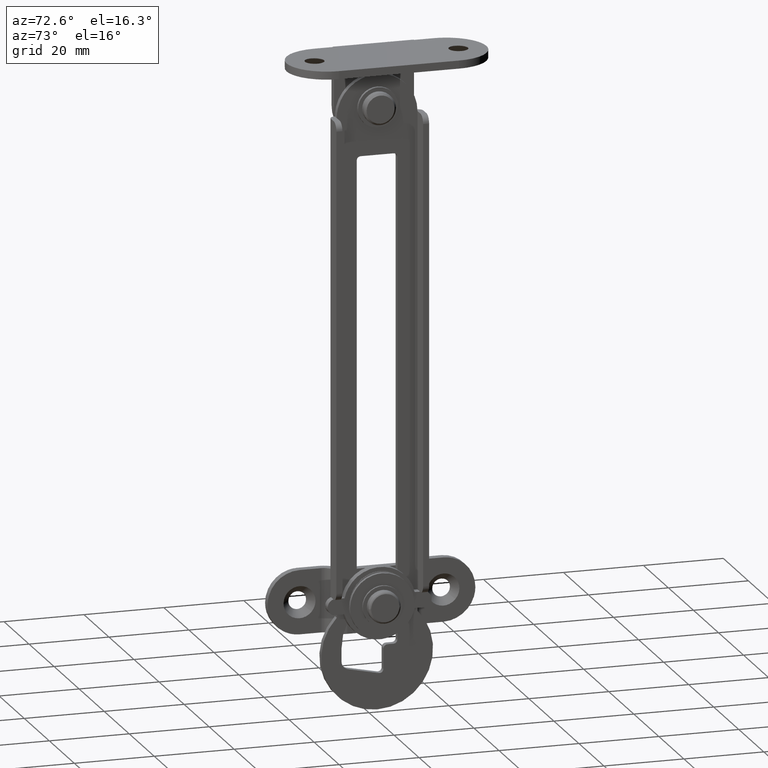
[diagram: clean part render]
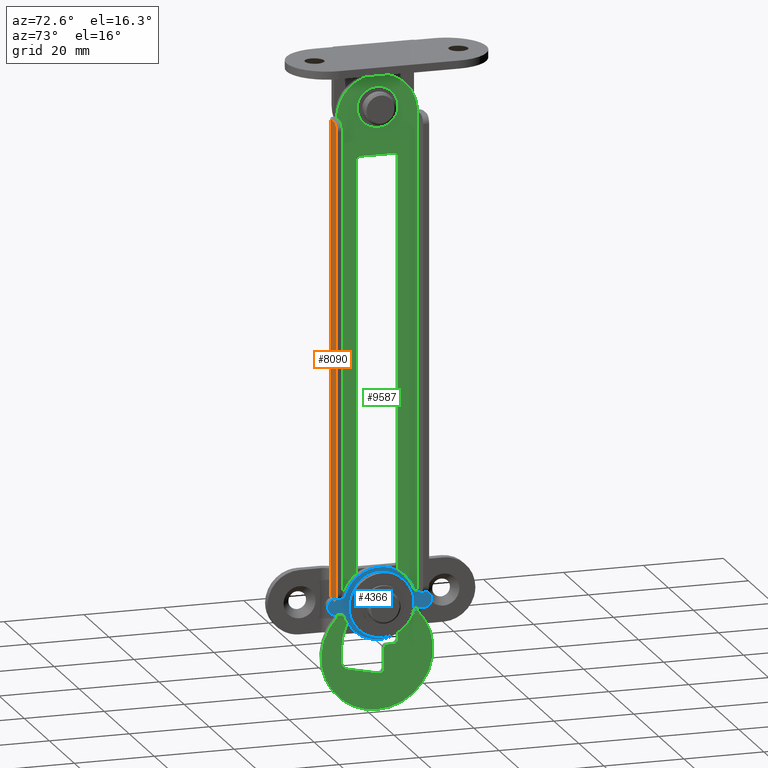
[diagram: same view with three faces highlighted in distinct colors, each labeled with its STEP entity id]
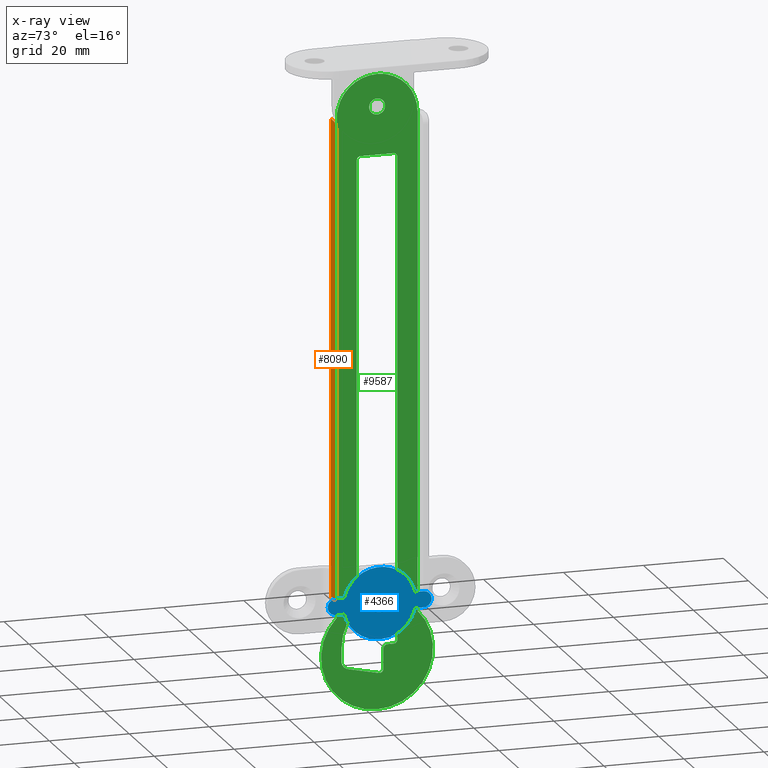
[diagram: x-ray of the same camera — body ghosted, the three highlighted faces saturated]
A machine part, auxiliary view with three faces highlighted in distinct colors.
The next image is the same camera in x-ray (body ghosted, the three faces saturated) — at least one of them is partly hidden behind the body in this view.
Their STEP definitions:

[orange] entity #8090 — the highlighted face is a freeform B-spline surface patch.
#8031=CARTESIAN_POINT('',(6.275225008721867,-11.600007000000000,3.944050518604876));
#8032=CARTESIAN_POINT('',(6.275225008721867,-11.600007000000000,-126.944068710434000));
#8033=CARTESIAN_POINT('',(11.224775111977660,-11.600007000000000,3.944050518604876));
#8034=CARTESIAN_POINT('',(11.224775111977660,-11.600007000000000,-126.944068710434000));
#8035=B_SPLINE_SURFACE_WITH_KNOTS('',1,1,((#8031,#8033),(#8032,#8034)),.UNSPECIFIED.,.F.,.F.,.U.,(2,2),(2,2),(0.0,130.888119229038890),(0.0,4.949550103255792),.UNSPECIFIED.);
#8036=CARTESIAN_POINT('',(9.000000000000119,-11.600007000000000,-2.0));
#8037=VERTEX_POINT('',#8036);
#8038=CARTESIAN_POINT('',(6.500000000000000,-11.600007000000000,-2.0));
#8039=VERTEX_POINT('',#8038);
#8040=CARTESIAN_POINT('',(9.000000000000119,-11.600007000000000,-2.0));
#8041=CARTESIAN_POINT('',(6.500000000000000,-11.600007000000000,-2.0));
#8042=QUASI_UNIFORM_CURVE('',1,(#8040,#8041),.UNSPECIFIED.,.F.,.U.);
#8043=EDGE_CURVE('',#8037,#8039,#8042,.T.);
#8044=ORIENTED_EDGE('',*,*,#8043,.T.);
#8045=CARTESIAN_POINT('',(6.500000000000000,-11.600007000000000,-121.000015000000000));
#8046=VERTEX_POINT('',#8045);
#8047=CARTESIAN_POINT('',(6.500000000000000,-11.600007000000000,-2.0));
#8048=CARTESIAN_POINT('',(6.500000000000000,-11.600007000000000,-121.000015000000000));
#8049=QUASI_UNIFORM_CURVE('',1,(#8047,#8048),.UNSPECIFIED.,.F.,.U.);
#8050=EDGE_CURVE('',#8039,#8046,#8049,.T.);
#8051=ORIENTED_EDGE('',*,*,#8050,.T.);
#8052=CARTESIAN_POINT('',(9.000000000000119,-11.600007000000000,-121.000015000000000));
#8053=VERTEX_POINT('',#8052);
#8054=CARTESIAN_POINT('',(9.000000000000119,-11.600007000000000,-121.000015000000000));
#8055=CARTESIAN_POINT('',(6.500000000000000,-11.600007000000000,-121.000015000000000));
#8056=QUASI_UNIFORM_CURVE('',1,(#8054,#8055),.UNSPECIFIED.,.F.,.U.);
#8057=EDGE_CURVE('',#8053,#8046,#8056,.T.);
#8058=ORIENTED_EDGE('',*,*,#8057,.F.);
#8059=CARTESIAN_POINT('',(11.000000000000121,-11.600007000000000,-119.000015000000000));
#8060=VERTEX_POINT('',#8059);
#8061=CARTESIAN_POINT('',(9.000000000000119,-11.600007000000000,-121.000015000000000));
#8062=CARTESIAN_POINT('',(9.311027817312393,-11.600007000000000,-121.000598600769000));
#8063=CARTESIAN_POINT('',(9.801264174646930,-11.600007000000019,-120.883095326084100));
#8064=CARTESIAN_POINT('',(10.414112038293050,-11.600006999999980,-120.462737651445100));
#8065=CARTESIAN_POINT('',(10.867627985511270,-11.600007000000041,-119.866853696787200));
#8066=CARTESIAN_POINT('',(11.000507950984151,-11.600006999999970,-119.310973426893600));
#8067=CARTESIAN_POINT('',(11.000000000000121,-11.600007000000000,-119.000015000000000));
#8068=B_SPLINE_CURVE_WITH_KNOTS('',3,(#8061,#8062,#8063,#8064,#8065,#8066,#8067),.UNSPECIFIED.,.F.,.U.,(4,1,1,1,4),(0.000000633074783,0.932686972905282,1.472688431320631,2.208981155448811,3.141671488830991),.UNSPECIFIED.);
#8069=EDGE_CURVE('',#8053,#8060,#8068,.T.);
#8070=ORIENTED_EDGE('',*,*,#8069,.T.);
#8071=CARTESIAN_POINT('',(11.000000000000121,-11.600007000000000,-4.0));
#8072=VERTEX_POINT('',#8071);
#8073=CARTESIAN_POINT('',(11.000000000000121,-11.600007000000000,-119.000015000000000));
#8074=CARTESIAN_POINT('',(11.000000000000121,-11.600007000000000,-4.0));
#8075=QUASI_UNIFORM_CURVE('',1,(#8073,#8074),.UNSPECIFIED.,.F.,.U.);
#8076=EDGE_CURVE('',#8060,#8072,#8075,.T.);
#8077=ORIENTED_EDGE('',*,*,#8076,.T.);
#8078=CARTESIAN_POINT('',(11.000000000000121,-11.600007000000000,-4.0));
#8079=CARTESIAN_POINT('',(11.000190141825920,-11.600006999999991,-3.754540732444406));
#8080=CARTESIAN_POINT('',(10.908545519536300,-11.600007000000019,-3.263787123399931));
#8081=CARTESIAN_POINT('',(10.533236264868091,-11.600006999999991,-2.654553542685784));
#8082=CARTESIAN_POINT('',(9.899163317370354,-11.600007000000010,-2.147035042383561));
#8083=CARTESIAN_POINT('',(9.343808918300075,-11.600007000000000,-1.999215573508149));
#8084=CARTESIAN_POINT('',(9.000000000000119,-11.600007000000000,-2.0));
#8085=B_SPLINE_CURVE_WITH_KNOTS('',3,(#8078,#8079,#8080,#8081,#8082,#8083,#8084),.UNSPECIFIED.,.F.,.U.,(4,1,1,1,4),(0.000000633080186,0.736327350111824,1.472688431323159,2.110794237617833,3.141671488830998),.UNSPECIFIED.);
#8086=EDGE_CURVE('',#8072,#8037,#8085,.T.);
#8087=ORIENTED_EDGE('',*,*,#8086,.T.);
#8088=EDGE_LOOP('',(#8044,#8051,#8058,#8070,#8077,#8087));
#8089=FACE_OUTER_BOUND('',#8088,.T.);
#8090=ADVANCED_FACE('',(#8089),#8035,.T.);

[blue] entity #4366 — the highlighted face is a freeform B-spline surface patch.
#4067=CARTESIAN_POINT('',(8.499999999812198,-1.514378560012118,-121.404192367175700));
#4068=VERTEX_POINT('',#4067);
#4069=CARTESIAN_POINT('',(8.500000000000119,-2.199999999988829,-123.000022011007800));
#4070=VERTEX_POINT('',#4069);
#4071=CARTESIAN_POINT('',(8.499999999812198,-1.514378560012118,-121.404192367175700));
#4072=CARTESIAN_POINT('',(8.499999999839311,-1.757656436671839,-121.634321488796400));
#4073=CARTESIAN_POINT('',(8.499999999899361,-2.093130137615382,-122.144545134834200));
#4074=CARTESIAN_POINT('',(8.499999999969466,-2.200182240285936,-122.739623188018100));
#4075=CARTESIAN_POINT('',(8.500000000000119,-2.199999999988829,-123.000022011007800));
#4076=B_SPLINE_CURVE_WITH_KNOTS('',3,(#4071,#4072,#4073,#4074,#4075),.UNSPECIFIED.,.F.,.U.,(4,1,4),(0.000000182652122,1.004340787439086,1.785526382123468),.UNSPECIFIED.);
#4077=EDGE_CURVE('',#4068,#4070,#4076,.T.);
#4079=CARTESIAN_POINT('',(8.500000000000119,0.0,-125.200014999999990));
#4080=VERTEX_POINT('',#4079);
#4081=CARTESIAN_POINT('',(8.500000000000119,-2.199999999988829,-123.000022011007800));
#4082=CARTESIAN_POINT('',(8.500000000000112,-2.200960227943943,-123.378213448047300));
#4083=CARTESIAN_POINT('',(8.500000000000117,-2.028657581073538,-124.025099977765390));
#4084=CARTESIAN_POINT('',(8.500000000000119,-1.427640103651790,-124.739581590401900));
#4085=CARTESIAN_POINT('',(8.500000000000139,-0.737906357016346,-125.118951858041900));
#4086=CARTESIAN_POINT('',(8.500000000000101,-0.233987456557844,-125.200120869132600));
#4087=CARTESIAN_POINT('',(8.500000000000119,0.0,-125.200014999999990));
#4088=B_SPLINE_CURVE_WITH_KNOTS('',3,(#4081,#4082,#4083,#4084,#4085,#4086,#4087),.UNSPECIFIED.,.F.,.U.,(4,1,1,1,4),(0.000000620806074,1.133977093097966,1.943845537818117,2.753885164054109,3.455834686033117),.UNSPECIFIED.);
#4089=EDGE_CURVE('',#4070,#4080,#4088,.T.);
#4091=CARTESIAN_POINT('',(8.499999999812196,1.514378560012113,-124.595837632824400));
#4092=VERTEX_POINT('',#4091);
#4093=CARTESIAN_POINT('',(8.500000000000119,0.0,-125.200014999999990));
#4094=CARTESIAN_POINT('',(8.499999999963402,0.295816795678137,-125.200367261132500));
#4095=CARTESIAN_POINT('',(8.499999999894362,0.852269905205248,-125.085898721849500));
#4096=CARTESIAN_POINT('',(8.499999999835687,1.325169577939551,-124.775647640252100));
#4097=CARTESIAN_POINT('',(8.499999999812196,1.514378560012113,-124.595837632824400));
#4098=B_SPLINE_CURVE_WITH_KNOTS('',3,(#4093,#4094,#4095,#4096,#4097),.UNSPECIFIED.,.F.,.U.,(4,1,4),(0.000000130831618,0.887316415477756,1.670318180353883),.UNSPECIFIED.);
#4099=EDGE_CURVE('',#4080,#4092,#4098,.T.);
#4166=CARTESIAN_POINT('',(8.500000000000119,0.0,-120.800015000000000));
#4167=VERTEX_POINT('',#4166);
#4168=CARTESIAN_POINT('',(8.500000000000119,0.0,-120.800015000000000));
#4169=CARTESIAN_POINT('',(8.499999999963423,-0.295817282822841,-120.799661390540290));
#4170=CARTESIAN_POINT('',(8.499999999894344,-0.852268486825053,-120.914132343461900));
#4171=CARTESIAN_POINT('',(8.499999999835689,-1.325170374347369,-121.224381878726310));
#4172=CARTESIAN_POINT('',(8.499999999812198,-1.514378560012118,-121.404192367175700));
#4173=B_SPLINE_CURVE_WITH_KNOTS('',3,(#4168,#4169,#4170,#4171,#4172),.UNSPECIFIED.,.F.,.U.,(4,1,4),(0.000000130832315,0.887316415478043,1.670318180353918),.UNSPECIFIED.);
#4174=EDGE_CURVE('',#4167,#4068,#4173,.T.);
#4208=CARTESIAN_POINT('',(8.500000000000117,2.199999999988829,-123.000007988992190));
#4209=VERTEX_POINT('',#4208);
#4210=CARTESIAN_POINT('',(8.499999999812196,1.514378560012113,-124.595837632824400));
#4211=CARTESIAN_POINT('',(8.499999999834786,1.716941514872334,-124.403936134180400));
#4212=CARTESIAN_POINT('',(8.499999999892852,2.069332072656536,-123.910986185655300));
#4213=CARTESIAN_POINT('',(8.499999999962878,2.200438854036396,-123.316235630413300));
#4214=CARTESIAN_POINT('',(8.500000000000117,2.199999999988829,-123.000007988992190));
#4215=B_SPLINE_CURVE_WITH_KNOTS('',3,(#4210,#4211,#4212,#4213,#4214),.UNSPECIFIED.,.F.,.U.,(4,1,4),(0.000000182651829,0.837014626836825,1.785526382123499),.UNSPECIFIED.);
#4216=EDGE_CURVE('',#4092,#4209,#4215,.T.);
#4218=CARTESIAN_POINT('',(8.500000000000117,2.199999999988829,-123.000007988992190));
#4219=CARTESIAN_POINT('',(8.500000000000114,2.200203209681027,-122.730004535337200));
#4220=CARTESIAN_POINT('',(8.500000000000126,2.099421444105420,-122.190153734272400));
#4221=CARTESIAN_POINT('',(8.500000000000112,1.686545623253395,-121.520012647296890));
#4222=CARTESIAN_POINT('',(8.500000000000133,0.989065439098311,-120.961817729382200));
#4223=CARTESIAN_POINT('',(8.500000000000107,0.378208281616629,-120.799066626691500));
#4224=CARTESIAN_POINT('',(8.500000000000119,0.0,-120.800015000000000));
#4225=B_SPLINE_CURVE_WITH_KNOTS('',3,(#4218,#4219,#4220,#4221,#4222,#4223,#4224),.UNSPECIFIED.,.F.,.U.,(4,1,1,1,4),(0.000000620825634,0.809962238716494,1.619971103098136,2.321867762348007,3.455834686033128),.UNSPECIFIED.);
#4226=EDGE_CURVE('',#4209,#4167,#4225,.T.);
#4231=CARTESIAN_POINT('',(8.500000000000000,-14.298699949606799,-113.100817224436600));
#4232=CARTESIAN_POINT('',(8.500000000000000,14.298700646981461,-113.100817224436600));
#4233=CARTESIAN_POINT('',(8.500000000000000,-14.298699949606799,-132.899126688867600));
#4234=CARTESIAN_POINT('',(8.500000000000000,14.298700646981461,-132.899126688867600));
#4235=B_SPLINE_SURFACE_WITH_KNOTS('',1,1,((#4231,#4233),(#4232,#4234)),.UNSPECIFIED.,.F.,.F.,.U.,(2,2),(2,2),(0.0,28.597400596588251),(0.0,19.798309464431011),.UNSPECIFIED.);
#4236=CARTESIAN_POINT('',(8.500000000000119,-10.999999999999840,-121.000015000000000));
#4237=VERTEX_POINT('',#4236);
#4238=CARTESIAN_POINT('',(8.500000000000119,-8.774964366689170,-121.000014909166000));
#4239=VERTEX_POINT('',#4238);
#4240=CARTESIAN_POINT('',(8.500000000000119,-10.999999999999840,-121.000015000000000));
#4241=CARTESIAN_POINT('',(8.500000000000119,-8.774964366689170,-121.000014909166000));
#4242=QUASI_UNIFORM_CURVE('',1,(#4240,#4241),.UNSPECIFIED.,.F.,.U.);
#4243=EDGE_CURVE('',#4237,#4239,#4242,.T.);
#4244=ORIENTED_EDGE('',*,*,#4243,.F.);
#4245=CARTESIAN_POINT('',(8.500000000000119,-12.999999999999840,-123.000014944964090));
#4246=VERTEX_POINT('',#4245);
#4247=CARTESIAN_POINT('',(8.500000000000119,-10.999999999999840,-121.000015000000000));
#4248=CARTESIAN_POINT('',(8.500000000000119,-11.310992782194869,-120.999509841944300));
#4249=CARTESIAN_POINT('',(8.500000000000121,-11.801351361841331,-121.116811470217100));
#4250=CARTESIAN_POINT('',(8.500000000000132,-12.345901169647600,-121.490696098066810));
#4251=CARTESIAN_POINT('',(8.500000000000082,-12.668944624461330,-121.865175306871190));
#4252=CARTESIAN_POINT('',(8.500000000000132,-12.926743692662489,-122.362007983127200));
#4253=CARTESIAN_POINT('',(8.500000000000101,-13.000225389625511,-122.754539527016800));
#4254=CARTESIAN_POINT('',(8.500000000000119,-12.999999999999840,-123.000014944964090));
#4255=B_SPLINE_CURVE_WITH_KNOTS('',3,(#4247,#4248,#4249,#4250,#4251,#4252,#4253,#4254),.UNSPECIFIED.,.F.,.U.,(4,1,1,1,1,4),(0.000000633117907,0.932686963738326,1.472688416739850,1.963502022073281,2.405343520438178,3.141671457811053),.UNSPECIFIED.);
#4256=EDGE_CURVE('',#4237,#4246,#4255,.T.);
#4257=ORIENTED_EDGE('',*,*,#4256,.T.);
#4258=CARTESIAN_POINT('',(8.500000000000119,-10.999999999999840,-125.000015000000000));
#4259=VERTEX_POINT('',#4258);
#4260=CARTESIAN_POINT('',(8.500000000000119,-12.999999999999840,-123.000014944964090));
#4261=CARTESIAN_POINT('',(8.500000000000124,-13.000054220785289,-123.196355795288500));
#4262=CARTESIAN_POINT('',(8.500000000000112,-12.936937175630471,-123.621801367740700));
#4263=CARTESIAN_POINT('',(8.500000000000126,-12.668216874281150,-124.155738078864500));
#4264=CARTESIAN_POINT('',(8.500000000000103,-12.292928717995180,-124.549652764979500));
#4265=CARTESIAN_POINT('',(8.500000000000133,-11.768635321037729,-124.890983633298700));
#4266=CARTESIAN_POINT('',(8.500000000000124,-11.311012550709350,-125.000573668786300));
#4267=CARTESIAN_POINT('',(8.500000000000119,-10.999999999999840,-125.000015000000000));
#4268=B_SPLINE_CURVE_WITH_KNOTS('',3,(#4260,#4261,#4262,#4263,#4264,#4265,#4266,#4267),.UNSPECIFIED.,.F.,.U.,(4,1,1,1,1,4),(0.000000633041165,0.589043785687871,1.276353273555264,1.767149368499000,2.208981177235086,3.141671519851117),.UNSPECIFIED.);
#4269=EDGE_CURVE('',#4246,#4259,#4268,.T.);
#4270=ORIENTED_EDGE('',*,*,#4269,.T.);
#4271=CARTESIAN_POINT('',(8.500000000000119,-8.774964366689170,-125.000015090834000));
#4272=VERTEX_POINT('',#4271);
#4273=CARTESIAN_POINT('',(8.500000000000119,-8.774964366689170,-125.000015090834000));
#4274=CARTESIAN_POINT('',(8.500000000000119,-10.999999999999840,-125.000015000000000));
#4275=QUASI_UNIFORM_CURVE('',1,(#4273,#4274),.UNSPECIFIED.,.F.,.U.);
#4276=EDGE_CURVE('',#4272,#4259,#4275,.T.);
#4277=ORIENTED_EDGE('',*,*,#4276,.F.);
#4278=CARTESIAN_POINT('',(8.500000000000119,8.774963000000181,-125.000015000000000));
#4279=VERTEX_POINT('',#4278);
#4280=CARTESIAN_POINT('',(8.500000000000119,-8.774964366689170,-125.000015090834000));
#4281=CARTESIAN_POINT('',(8.500000000000117,-8.537346319036407,-126.046689489979500));
#4282=CARTESIAN_POINT('',(8.500000000000123,-7.882098243058506,-127.580025381124700));
#4283=CARTESIAN_POINT('',(8.500000000000116,-6.532086188578143,-129.261059232714100));
#4284=CARTESIAN_POINT('',(8.500000000000146,-5.336634290082848,-130.299891940161190));
#4285=CARTESIAN_POINT('',(8.500000000000066,-3.713623617477640,-131.288978418675810));
#4286=CARTESIAN_POINT('',(8.500000000000245,-1.772511197296713,-131.922762751285010));
#4287=CARTESIAN_POINT('',(8.499999999999975,0.254767810063350,-132.050573441849110));
#4288=CARTESIAN_POINT('',(8.500000000000208,1.888711056897012,-131.843186127274810));
#4289=CARTESIAN_POINT('',(8.500000000000192,3.343645842211416,-131.401735257695210));
#4290=CARTESIAN_POINT('',(8.499999999999874,4.704045470878533,-130.722767908730190));
#4291=CARTESIAN_POINT('',(8.500000000000227,5.931455406029520,-129.825409641192610));
#4292=CARTESIAN_POINT('',(8.500000000000147,7.168011750077689,-128.553566014637310));
#4293=CARTESIAN_POINT('',(8.499999999999973,8.183098623615846,-126.936952223717600));
#4294=CARTESIAN_POINT('',(8.500000000000192,8.634767216060599,-125.615510295319300));
#4295=CARTESIAN_POINT('',(8.500000000000119,8.774963000000181,-125.000015000000000));
#4296=B_SPLINE_CURVE_WITH_KNOTS('',3,(#4280,#4281,#4282,#4283,#4284,#4285,#4286,#4287,#4288,#4289,#4290,#4291,#4292,#4293,#4294,#4295),.UNSPECIFIED.,.F.,.U.,(4,1,1,1,1,1,1,1,1,1,1,1,1,4),(0.000000251978630,3.219510625033323,4.923949193202859,6.439055698795304,7.954167351182054,10.605559866810200,12.499292238850630,14.014366131959701,15.529371218439380,17.044523303566709,18.559607664804179,20.074717413330561,22.347290008819112,24.241104056901900),.UNSPECIFIED.);
#4297=EDGE_CURVE('',#4272,#4279,#4296,.T.);
#4298=ORIENTED_EDGE('',*,*,#4297,.T.);
#4299=CARTESIAN_POINT('',(8.500000000000119,10.999999895280400,-125.000015000000000));
#4300=VERTEX_POINT('',#4299);
#4301=CARTESIAN_POINT('',(8.500000000000119,10.999999895280400,-125.000015000000000));
#4302=CARTESIAN_POINT('',(8.500000000000119,8.774963000000181,-125.000015000000000));
#4303=QUASI_UNIFORM_CURVE('',1,(#4301,#4302),.UNSPECIFIED.,.F.,.U.);
#4304=EDGE_CURVE('',#4300,#4279,#4303,.T.);
#4305=ORIENTED_EDGE('',*,*,#4304,.F.);
#4306=CARTESIAN_POINT('',(8.500000000000117,13.000000000000160,-123.000015036139100));
#4307=VERTEX_POINT('',#4306);
#4308=CARTESIAN_POINT('',(8.500000000000119,10.999999895280400,-125.000015000000000));
#4309=CARTESIAN_POINT('',(8.500000000000117,11.311009251561090,-125.000515890782000));
#4310=CARTESIAN_POINT('',(8.500000000000121,11.801278266895331,-124.883161797792300));
#4311=CARTESIAN_POINT('',(8.500000000000117,12.414123635131270,-124.462739768091690));
#4312=CARTESIAN_POINT('',(8.500000000000181,12.867571038995470,-123.866805837163990));
#4313=CARTESIAN_POINT('',(8.500000000000064,13.000558548704790,-123.310995518699900));
#4314=CARTESIAN_POINT('',(8.500000000000117,13.000000000000160,-123.000015036139100));
#4315=B_SPLINE_CURVE_WITH_KNOTS('',3,(#4308,#4309,#4310,#4311,#4312,#4313,#4314),.UNSPECIFIED.,.F.,.U.,(4,1,1,1,4),(0.000000633035144,0.932686984338437,1.472688449497726,2.208981182600640,3.141671527485165),.UNSPECIFIED.);
#4316=EDGE_CURVE('',#4300,#4307,#4315,.T.);
#4317=ORIENTED_EDGE('',*,*,#4316,.T.);
#4318=CARTESIAN_POINT('',(8.500000000000119,11.000000000000160,-121.000015000000000));
#4319=VERTEX_POINT('',#4318);
#4320=CARTESIAN_POINT('',(8.500000000000117,13.000000000000160,-123.000015036139100));
#4321=CARTESIAN_POINT('',(8.500000000000108,13.000020048122440,-122.836405707401000));
#4322=CARTESIAN_POINT('',(8.500000000000133,12.951641856350530,-122.443646665940090));
#4323=CARTESIAN_POINT('',(8.500000000000139,12.729643165122919,-121.942782214518000));
#4324=CARTESIAN_POINT('',(8.500000000000073,12.337400724430600,-121.476644317268690));
#4325=CARTESIAN_POINT('',(8.500000000000211,11.785261858504350,-121.107533812412200));
#4326=CARTESIAN_POINT('',(8.500000000000066,11.278185285051149,-120.999710353021100));
#4327=CARTESIAN_POINT('',(8.500000000000119,11.000000000000160,-121.000015000000000));
#4328=B_SPLINE_CURVE_WITH_KNOTS('',3,(#4320,#4321,#4322,#4323,#4324,#4325,#4326,#4327),.UNSPECIFIED.,.F.,.U.,(4,1,1,1,1,4),(0.000000633034984,0.490859887128256,1.178173088064060,1.619829704019965,2.307164067911427,3.141671509200460),.UNSPECIFIED.);
#4329=EDGE_CURVE('',#4307,#4319,#4328,.T.);
#4330=ORIENTED_EDGE('',*,*,#4329,.T.);
#4331=CARTESIAN_POINT('',(8.500000000000119,8.774964331782579,-121.000014756014000));
#4332=VERTEX_POINT('',#4331);
#4333=CARTESIAN_POINT('',(8.500000000000119,8.774964331782579,-121.000014756014000));
#4334=CARTESIAN_POINT('',(8.500000000000119,11.000000000000160,-121.000015000000000));
#4335=QUASI_UNIFORM_CURVE('',1,(#4333,#4334),.UNSPECIFIED.,.F.,.U.);
#4336=EDGE_CURVE('',#4332,#4319,#4335,.T.);
#4337=ORIENTED_EDGE('',*,*,#4336,.F.);
#4338=CARTESIAN_POINT('',(8.500000000000119,8.774964331782579,-121.000014756014000));
#4339=CARTESIAN_POINT('',(8.500000000000124,8.606832000739940,-120.261403583813400));
#4340=CARTESIAN_POINT('',(8.500000000000110,8.104234579064968,-118.886922585993600));
#4341=CARTESIAN_POINT('',(8.500000000000121,6.968918163723417,-117.199720460640510));
#4342=CARTESIAN_POINT('',(8.500000000000132,5.691736094921681,-115.966270758285400));
#4343=CARTESIAN_POINT('',(8.500000000000082,4.374971560416063,-115.086224449457900));
#4344=CARTESIAN_POINT('',(8.500000000000190,2.755932191133123,-114.361357628880400));
#4345=CARTESIAN_POINT('',(8.500000000000179,1.013641881225626,-113.989340115220100));
#4346=CARTESIAN_POINT('',(8.500000000000028,-1.013629568148871,-113.989244239042610));
#4347=CARTESIAN_POINT('',(8.500000000000153,-2.880403118443846,-114.387981454073300));
#4348=CARTESIAN_POINT('',(8.500000000000119,-4.831382039090410,-115.310953085113990));
#4349=CARTESIAN_POINT('',(8.500000000000117,-6.323631936799459,-116.501405564021200));
#4350=CARTESIAN_POINT('',(8.500000000000108,-7.850672611593877,-118.362629845927900));
#4351=CARTESIAN_POINT('',(8.500000000000126,-8.523485302826080,-119.891716808375610));
#4352=CARTESIAN_POINT('',(8.500000000000119,-8.774964366689170,-121.000014909166000));
#4353=B_SPLINE_CURVE_WITH_KNOTS('',3,(#4338,#4339,#4340,#4341,#4342,#4343,#4344,#4345,#4346,#4347,#4348,#4349,#4350,#4351,#4352),.UNSPECIFIED.,.F.,.U.,(4,1,1,1,1,1,1,1,1,1,1,1,4),(0.000000251975941,2.272504188450593,4.355770762940022,6.060280407238476,7.575397092461511,9.090422372023651,11.363088773313050,12.878051986796750,15.150605162035310,17.044523980616049,19.317133604657009,20.832285749995279,24.241105019821529),.UNSPECIFIED.);
#4354=EDGE_CURVE('',#4332,#4239,#4353,.T.);
#4355=ORIENTED_EDGE('',*,*,#4354,.T.);
#4356=EDGE_LOOP('',(#4244,#4257,#4270,#4277,#4298,#4305,#4317,#4330,#4337,#4355));
#4357=FACE_OUTER_BOUND('',#4356,.T.);
#4358=ORIENTED_EDGE('',*,*,#4089,.F.);
#4359=ORIENTED_EDGE('',*,*,#4077,.F.);
#4360=ORIENTED_EDGE('',*,*,#4174,.F.);
#4361=ORIENTED_EDGE('',*,*,#4226,.F.);
#4362=ORIENTED_EDGE('',*,*,#4216,.F.);
#4363=ORIENTED_EDGE('',*,*,#4099,.F.);
#4364=EDGE_LOOP('',(#4358,#4359,#4360,#4361,#4362,#4363));
#4365=FACE_BOUND('',#4364,.T.);
#4366=ADVANCED_FACE('',(#4357,#4365),#4235,.F.);

[green] entity #9587 — the highlighted face is a freeform B-spline surface patch.
#7898=CARTESIAN_POINT('',(6.500000000000000,-1.401818130425980,1.426501270304761));
#7899=VERTEX_POINT('',#7898);
#7905=CARTESIAN_POINT('',(6.500000000000000,-1.999999999999999,-0.000000055035999));
#7906=VERTEX_POINT('',#7905);
#7907=CARTESIAN_POINT('',(6.500000000000000,-1.999999999999999,-0.000000055035999));
#7908=CARTESIAN_POINT('',(6.499999999999998,-2.000801605296121,0.331074792098914));
#7909=CARTESIAN_POINT('',(6.499999999999989,-1.865379621508600,0.859626920912765));
#7910=CARTESIAN_POINT('',(6.500000000000007,-1.543471408052776,1.287396064692109));
#7911=CARTESIAN_POINT('',(6.500000000000000,-1.401818130425980,1.426501270304761));
#7912=B_SPLINE_CURVE_WITH_KNOTS('',3,(#7907,#7908,#7909,#7910,#7911),.UNSPECIFIED.,.F.,.U.,(4,1,4),(0.000000148909229,0.992664741090703,1.588290959198804),.UNSPECIFIED.);
#7913=EDGE_CURVE('',#7906,#7899,#7912,.T.);
#7915=CARTESIAN_POINT('',(6.500000000000000,0.0,-2.0));
#7916=VERTEX_POINT('',#7915);
#7917=CARTESIAN_POINT('',(6.500000000000000,0.0,-2.0));
#7918=CARTESIAN_POINT('',(6.500000000000002,-0.196326236803006,-2.000025129273309));
#7919=CARTESIAN_POINT('',(6.500000000000007,-0.654572953151147,-1.932213638662527));
#7920=CARTESIAN_POINT('',(6.499999999999980,-1.242929850331033,-1.617733343522101));
#7921=CARTESIAN_POINT('',(6.500000000000023,-1.653785319402174,-1.164054646524848));
#7922=CARTESIAN_POINT('',(6.499999999999993,-1.926761413123408,-0.638004529938924));
#7923=CARTESIAN_POINT('',(6.500000000000006,-2.000198975283831,-0.245471631698664));
#7924=CARTESIAN_POINT('',(6.500000000000000,-1.999999999999999,-0.000000055035999));
#7925=B_SPLINE_CURVE_WITH_KNOTS('',3,(#7917,#7918,#7919,#7920,#7921,#7922,#7923,#7924),.UNSPECIFIED.,.F.,.U.,(4,1,1,1,1,4),(0.000000633118132,0.589043774118171,1.374526089243631,1.963502022072255,2.405343520437926,3.141671457811024),.UNSPECIFIED.);
#7926=EDGE_CURVE('',#7916,#7906,#7925,.T.);
#7928=CARTESIAN_POINT('',(6.500000000000000,1.401818130425981,-1.426501270304762));
#7929=VERTEX_POINT('',#7928);
#7930=CARTESIAN_POINT('',(6.500000000000000,1.401818130425981,-1.426501270304762));
#7931=CARTESIAN_POINT('',(6.499999999999995,1.286420066040690,-1.539879864862290));
#7932=CARTESIAN_POINT('',(6.500000000000021,0.872917608500746,-1.858060431330297));
#7933=CARTESIAN_POINT('',(6.499999999999992,0.356252315885464,-2.000993771219614));
#7934=CARTESIAN_POINT('',(6.500000000000000,0.0,-2.0));
#7935=B_SPLINE_CURVE_WITH_KNOTS('',3,(#7930,#7931,#7932,#7933,#7934),.UNSPECIFIED.,.F.,.U.,(4,1,4),(0.000057332588186,0.485474589826488,1.553409172210848),.UNSPECIFIED.);
#7936=EDGE_CURVE('',#7929,#7916,#7935,.T.);
#7975=CARTESIAN_POINT('',(6.500000000000000,1.999999999999999,0.000000055035993));
#7976=VERTEX_POINT('',#7975);
#7977=CARTESIAN_POINT('',(6.500000000000000,1.999999999999999,0.000000055035993));
#7978=CARTESIAN_POINT('',(6.499999999999994,2.000033243038247,-0.198510924622109));
#7979=CARTESIAN_POINT('',(6.500000000000023,1.920725826528605,-0.728047369380959));
#7980=CARTESIAN_POINT('',(6.499999999999989,1.638410878529170,-1.194951607714130));
#7981=CARTESIAN_POINT('',(6.500000000000000,1.401818130425981,-1.426501270304762));
#7982=B_SPLINE_CURVE_WITH_KNOTS('',3,(#7977,#7978,#7979,#7980,#7981),.UNSPECIFIED.,.F.,.U.,(4,1,4),(0.000000148909258,0.595626367022481,1.588290959198798),.UNSPECIFIED.);
#7983=EDGE_CURVE('',#7976,#7929,#7982,.T.);
#7985=CARTESIAN_POINT('',(6.500000000000000,0.0,2.0));
#7986=VERTEX_POINT('',#7985);
#7987=CARTESIAN_POINT('',(6.500000000000000,0.0,2.0));
#7988=CARTESIAN_POINT('',(6.500000000000009,0.196348095666510,2.000070016343258));
#7989=CARTESIAN_POINT('',(6.499999999999984,0.589002105534888,1.941702682557977));
#7990=CARTESIAN_POINT('',(6.500000000000006,1.187280142726105,1.659028552174805));
#7991=CARTESIAN_POINT('',(6.500000000000001,1.623590074524727,1.222641936926909));
#7992=CARTESIAN_POINT('',(6.499999999999993,1.926727771590865,0.637989628471462));
#7993=CARTESIAN_POINT('',(6.500000000000004,2.000223993982883,0.245475106367751));
#7994=CARTESIAN_POINT('',(6.500000000000000,1.999999999999999,0.000000055035993));
#7995=B_SPLINE_CURVE_WITH_KNOTS('',3,(#7987,#7988,#7989,#7990,#7991,#7992,#7993,#7994),.UNSPECIFIED.,.F.,.U.,(4,1,1,1,1,4),(0.000000633118024,0.589043774118085,1.178173068856876,1.963502022072236,2.405343520437921,3.141671457811028),.UNSPECIFIED.);
#7996=EDGE_CURVE('',#7986,#7976,#7995,.T.);
#7998=CARTESIAN_POINT('',(6.500000000000000,-1.401818130425980,1.426501270304761));
#7999=CARTESIAN_POINT('',(6.499999999999999,-1.286420276562166,1.539880824592787));
#8000=CARTESIAN_POINT('',(6.499999999999999,-0.872917935235357,1.858059068356832));
#8001=CARTESIAN_POINT('',(6.500000000000010,-0.356252374318572,2.000994025447797));
#8002=CARTESIAN_POINT('',(6.500000000000000,0.0,2.0));
#8003=B_SPLINE_CURVE_WITH_KNOTS('',3,(#7998,#7999,#8000,#8001,#8002),.UNSPECIFIED.,.F.,.U.,(4,1,4),(0.000057332588200,0.485474589826494,1.553409172210848),.UNSPECIFIED.);
#8004=EDGE_CURVE('',#7899,#7986,#8003,.T.);
#8702=CARTESIAN_POINT('',(6.500000000000090,2.600007000000000,-134.000014999999990));
#8703=VERTEX_POINT('',#8702);
#8709=CARTESIAN_POINT('',(6.500000000000000,4.100007000000000,-134.000014999999990));
#8710=VERTEX_POINT('',#8709);
#8711=CARTESIAN_POINT('',(6.500000000000090,2.600007000000000,-134.000014999999990));
#8712=CARTESIAN_POINT('',(6.500000000000000,4.100007000000000,-134.000014999999990));
#8713=QUASI_UNIFORM_CURVE('',1,(#8711,#8712),.UNSPECIFIED.,.F.,.U.);
#8714=EDGE_CURVE('',#8703,#8710,#8713,.T.);
#8740=CARTESIAN_POINT('',(6.500000000000000,5.100007000000000,-133.000014999999990));
#8741=VERTEX_POINT('',#8740);
#8742=CARTESIAN_POINT('',(6.500000000000000,4.100007000000000,-134.000014999999990));
#8743=CARTESIAN_POINT('',(6.499999999999998,4.247320202903092,-134.000245501756410));
#8744=CARTESIAN_POINT('',(6.500000000000010,4.492560723196022,-133.944767512132810));
#8745=CARTESIAN_POINT('',(6.499999999999986,4.767552884261368,-133.760900748627900));
#8746=CARTESIAN_POINT('',(6.500000000000037,5.015519399403755,-133.473883064525500));
#8747=CARTESIAN_POINT('',(6.499999999999980,5.100649521044428,-133.196550126445600));
#8748=CARTESIAN_POINT('',(6.500000000000000,5.100007000000000,-133.000014999999990));
#8749=B_SPLINE_CURVE_WITH_KNOTS('',3,(#8742,#8743,#8744,#8745,#8746,#8747,#8748),.UNSPECIFIED.,.F.,.U.,(4,1,1,1,4),(0.000001035568474,0.441839857583914,0.736452044490407,0.981840522443587,1.570953883565284),.UNSPECIFIED.);
#8750=EDGE_CURVE('',#8710,#8741,#8749,.T.);
#8767=CARTESIAN_POINT('',(6.500000000000000,5.100006999999841,-13.0));
#8768=VERTEX_POINT('',#8767);
#8769=CARTESIAN_POINT('',(6.500000000000000,5.100007000000000,-133.000014999999990));
#8770=CARTESIAN_POINT('',(6.500000000000000,5.100006999999841,-13.0));
#8771=QUASI_UNIFORM_CURVE('',1,(#8769,#8770),.UNSPECIFIED.,.F.,.U.);
#8772=EDGE_CURVE('',#8741,#8768,#8771,.T.);
#8798=CARTESIAN_POINT('',(6.500000000000000,4.100007645771830,-12.000000000000201));
#8799=VERTEX_POINT('',#8798);
#8800=CARTESIAN_POINT('',(6.500000000000000,5.100006999999841,-13.0));
#8801=CARTESIAN_POINT('',(6.500000000000003,5.100074966635046,-12.885465343750070));
#8802=CARTESIAN_POINT('',(6.500000000000000,5.057407797354367,-12.640023858640911));
#8803=CARTESIAN_POINT('',(6.499999999999996,4.860327232292996,-12.310897748808671));
#8804=CARTESIAN_POINT('',(6.500000000000001,4.525213738374414,-12.062573099836820));
#8805=CARTESIAN_POINT('',(6.500000000000003,4.247324118103194,-11.999781237807170));
#8806=CARTESIAN_POINT('',(6.500000000000000,4.100007645771830,-12.000000000000201));
#8807=B_SPLINE_CURVE_WITH_KNOTS('',3,(#8800,#8801,#8802,#8803,#8804,#8805,#8806),.UNSPECIFIED.,.F.,.U.,(4,1,1,1,4),(0.000001037269509,0.343638559344235,0.736451876025924,1.129114799128311,1.570953519561834),.UNSPECIFIED.);
#8808=EDGE_CURVE('',#8768,#8799,#8807,.T.);
#8825=CARTESIAN_POINT('',(6.500000000000000,-4.100005999999950,-12.0));
#8826=VERTEX_POINT('',#8825);
#8827=CARTESIAN_POINT('',(6.500000000000000,4.100007645771830,-12.000000000000201));
#8828=CARTESIAN_POINT('',(6.500000000000000,-4.100005999999950,-12.0));
#8829=QUASI_UNIFORM_CURVE('',1,(#8827,#8828),.UNSPECIFIED.,.F.,.U.);
#8830=EDGE_CURVE('',#8799,#8826,#8829,.T.);
#8856=CARTESIAN_POINT('',(6.500000000000000,-5.100005999999830,-13.000000488692200));
#8857=VERTEX_POINT('',#8856);
#8858=CARTESIAN_POINT('',(6.500000000000000,-4.100005999999950,-12.0));
#8859=CARTESIAN_POINT('',(6.499999999999999,-4.296560562406365,-11.999343040511350));
#8860=CARTESIAN_POINT('',(6.500000000000008,-4.573826809553048,-12.084527573023360));
#8861=CARTESIAN_POINT('',(6.499999999999994,-4.885942956319492,-12.353945080420401));
#8862=CARTESIAN_POINT('',(6.499999999999997,-5.057460075172145,-12.639994547480271));
#8863=CARTESIAN_POINT('',(6.500000000000017,-5.100060011675869,-12.885472042022780));
#8864=CARTESIAN_POINT('',(6.500000000000000,-5.100005999999830,-13.000000488692200));
#8865=B_SPLINE_CURVE_WITH_KNOTS('',3,(#8858,#8859,#8860,#8861,#8862,#8863,#8864),.UNSPECIFIED.,.F.,.U.,(4,1,1,1,4),(0.000001034282224,0.589114499574998,0.834503020456453,1.227316497372351,1.570954159027112),.UNSPECIFIED.);
#8866=EDGE_CURVE('',#8826,#8857,#8865,.T.);
#8883=CARTESIAN_POINT('',(6.500000000000000,-5.100006000000160,-123.648218885323600));
#8884=VERTEX_POINT('',#8883);
#8885=CARTESIAN_POINT('',(6.500000000000000,-5.100005999999830,-13.000000488692200));
#8886=CARTESIAN_POINT('',(6.500000000000000,-5.100006000000160,-123.648218885323600));
#8887=QUASI_UNIFORM_CURVE('',1,(#8885,#8886),.UNSPECIFIED.,.F.,.U.);
#8888=EDGE_CURVE('',#8857,#8884,#8887,.T.);
#8914=CARTESIAN_POINT('',(6.500000000000000,-5.575004375000160,-124.942193399658000));
#8915=VERTEX_POINT('',#8914);
#8916=CARTESIAN_POINT('',(6.500000000000000,-5.575004375000160,-124.942193399658000));
#8917=CARTESIAN_POINT('',(6.499999999999998,-5.404019460631480,-124.741152151460100));
#8918=CARTESIAN_POINT('',(6.500000000000000,-5.172864179900191,-124.322489452818900));
#8919=CARTESIAN_POINT('',(6.499999999999994,-5.099903582317702,-123.853442774020290));
#8920=CARTESIAN_POINT('',(6.500000000000000,-5.100006000000160,-123.648218885323600));
#8921=B_SPLINE_CURVE_WITH_KNOTS('',3,(#8916,#8917,#8918,#8919,#8920),.UNSPECIFIED.,.F.,.U.,(4,1,4),(0.000000098045367,0.791643323929172,1.407366598724690),.UNSPECIFIED.);
#8922=EDGE_CURVE('',#8915,#8884,#8921,.T.);
#8948=CARTESIAN_POINT('',(6.500000000000000,-8.899992999999459,-134.000019398229800));
#8949=VERTEX_POINT('',#8948);
#8950=CARTESIAN_POINT('',(6.500000000000000,-5.575004375000160,-124.942193399658000));
#8951=CARTESIAN_POINT('',(6.500000000000000,-6.605069518992237,-126.154343394805100));
#8952=CARTESIAN_POINT('',(6.500000000000004,-7.714762039888551,-128.037770868641900));
#8953=CARTESIAN_POINT('',(6.500000000000004,-8.694003118347391,-131.178346172042890));
#8954=CARTESIAN_POINT('',(6.499999999999992,-8.900290254780323,-132.871237811231710));
#8955=CARTESIAN_POINT('',(6.500000000000000,-8.899992999999459,-134.000019398229800));
#8956=B_SPLINE_CURVE_WITH_KNOTS('',3,(#8950,#8951,#8952,#8953,#8954,#8955),.UNSPECIFIED.,.F.,.U.,(4,1,1,4),(0.000000056861881,4.771536250526000,6.464592085907251,9.850827064580551),.UNSPECIFIED.);
#8957=EDGE_CURVE('',#8915,#8949,#8956,.T.);
#8974=CARTESIAN_POINT('',(6.500000000000000,-8.899993000000000,-137.380966000000000));
#8975=VERTEX_POINT('',#8974);
#8976=CARTESIAN_POINT('',(6.500000000000000,-8.899992999999459,-134.000019398229800));
#8977=CARTESIAN_POINT('',(6.500000000000000,-8.899993000000000,-137.380966000000000));
#8978=QUASI_UNIFORM_CURVE('',1,(#8976,#8977),.UNSPECIFIED.,.F.,.U.);
#8979=EDGE_CURVE('',#8949,#8975,#8978,.T.);
#9005=CARTESIAN_POINT('',(6.500000000000000,-7.316435970851040,-139.337143006205390));
#9006=VERTEX_POINT('',#9005);
#9007=CARTESIAN_POINT('',(6.500000000000000,-8.899993000000000,-137.380966000000000));
#9008=CARTESIAN_POINT('',(6.499999999999996,-8.900141736936408,-137.607821044044610));
#9009=CARTESIAN_POINT('',(6.500000000000012,-8.822002326211896,-138.061427899905000));
#9010=CARTESIAN_POINT('',(6.499999999999996,-8.512904382097936,-138.613658383563210));
#9011=CARTESIAN_POINT('',(6.499999999999998,-8.016748092281445,-139.087640055663400));
#9012=CARTESIAN_POINT('',(6.500000000000011,-7.593946944059831,-139.278462072266000));
#9013=CARTESIAN_POINT('',(6.500000000000000,-7.316435970851040,-139.337143006205390));
#9014=B_SPLINE_CURVE_WITH_KNOTS('',3,(#9007,#9008,#9009,#9010,#9011,#9012,#9013),.UNSPECIFIED.,.F.,.U.,(4,1,1,1,4),(0.000000313224104,0.680578689555320,1.361150682123849,1.871560193796869,2.722300717062378),.UNSPECIFIED.);
#9015=EDGE_CURVE('',#8975,#9006,#9014,.T.);
#9032=CARTESIAN_POINT('',(6.500000000000000,0.391784999999931,-140.978104000000000));
#9033=VERTEX_POINT('',#9032);
#9034=CARTESIAN_POINT('',(6.500000000000000,-7.316435970851040,-139.337143006205390));
#9035=CARTESIAN_POINT('',(6.500000000000000,0.391784999999931,-140.978104000000000));
#9036=QUASI_UNIFORM_CURVE('',1,(#9034,#9035),.UNSPECIFIED.,.F.,.U.);
#9037=EDGE_CURVE('',#9006,#9033,#9036,.T.);
#9063=CARTESIAN_POINT('',(6.500000000000000,1.600006999999780,-140.000015383972400));
#9064=VERTEX_POINT('',#9063);
#9065=CARTESIAN_POINT('',(6.500000000000000,0.391784999999931,-140.978104000000000));
#9066=CARTESIAN_POINT('',(6.500000000000001,0.536910448949705,-141.009224897128410));
#9067=CARTESIAN_POINT('',(6.499999999999996,0.821991862701345,-141.005187066007300));
#9068=CARTESIAN_POINT('',(6.500000000000002,1.217265399257939,-140.824045518469800));
#9069=CARTESIAN_POINT('',(6.499999999999994,1.519222132561285,-140.481949342851290));
#9070=CARTESIAN_POINT('',(6.500000000000011,1.600347748347275,-140.167011481826790));
#9071=CARTESIAN_POINT('',(6.500000000000000,1.600006999999780,-140.000015383972400));
#9072=B_SPLINE_CURVE_WITH_KNOTS('',3,(#9065,#9066,#9067,#9068,#9069,#9070,#9071),.UNSPECIFIED.,.F.,.U.,(4,1,1,1,4),(0.000000935632076,0.445198635680753,0.834773397477977,1.279934613744816,1.780785455851722),.UNSPECIFIED.);
#9073=EDGE_CURVE('',#9033,#9064,#9072,.T.);
#9090=CARTESIAN_POINT('',(6.500000000000000,1.600006999999965,-135.000014999999990));
#9091=VERTEX_POINT('',#9090);
#9092=CARTESIAN_POINT('',(6.500000000000000,1.600006999999780,-140.000015383972400));
#9093=CARTESIAN_POINT('',(6.500000000000000,1.600006999999965,-135.000014999999990));
#9094=QUASI_UNIFORM_CURVE('',1,(#9092,#9093),.UNSPECIFIED.,.F.,.U.);
#9095=EDGE_CURVE('',#9064,#9091,#9094,.T.);
#9121=CARTESIAN_POINT('',(6.500000000000090,2.600007000000000,-134.000014999999990));
#9122=CARTESIAN_POINT('',(6.500000000000079,2.452696788758279,-133.999776520944890));
#9123=CARTESIAN_POINT('',(6.500000000000024,2.207454959385299,-134.055272263415990));
#9124=CARTESIAN_POINT('',(6.500000000000006,1.932439455356956,-134.239114911690590));
#9125=CARTESIAN_POINT('',(6.499999999999983,1.684572630144097,-134.526182385932800));
#9126=CARTESIAN_POINT('',(6.499999999999986,1.599284789863112,-134.803448138716790));
#9127=CARTESIAN_POINT('',(6.500000000000000,1.600006999999965,-135.000014999999990));
#9128=B_SPLINE_CURVE_WITH_KNOTS('',3,(#9121,#9122,#9123,#9124,#9125,#9126,#9127),.UNSPECIFIED.,.F.,.U.,(4,1,1,1,4),(0.000001035569896,0.441839857584459,0.736452044490649,0.981840522443705,1.570953883565329),.UNSPECIFIED.);
#9129=EDGE_CURVE('',#8703,#9091,#9128,.T.);
#9158=CARTESIAN_POINT('',(6.500000000000000,-10.100007000000000,-121.000015000000000));
#9159=VERTEX_POINT('',#9158);
#9182=CARTESIAN_POINT('',(6.500000000000000,-10.100007000000000,-2.0));
#9183=VERTEX_POINT('',#9182);
#9184=CARTESIAN_POINT('',(6.500000000000000,-10.100007000000000,-2.0));
#9185=CARTESIAN_POINT('',(6.500000000000000,-10.100007000000000,-121.000015000000000));
#9186=QUASI_UNIFORM_CURVE('',1,(#9184,#9185),.UNSPECIFIED.,.F.,.U.);
#9187=EDGE_CURVE('',#9183,#9159,#9186,.T.);
#9240=CARTESIAN_POINT('',(6.500000000000000,10.100006000000061,-121.000015000000000));
#9241=VERTEX_POINT('',#9240);
#9250=CARTESIAN_POINT('',(6.500000000000000,10.100006000000061,-2.0));
#9251=VERTEX_POINT('',#9250);
#9257=CARTESIAN_POINT('',(6.500000000000000,10.100006000000061,-2.0));
#9258=CARTESIAN_POINT('',(6.500000000000000,10.100006000000061,-121.000015000000000));
#9259=QUASI_UNIFORM_CURVE('',1,(#9257,#9258),.UNSPECIFIED.,.F.,.U.);
#9260=EDGE_CURVE('',#9251,#9241,#9259,.T.);
#9328=CARTESIAN_POINT('',(6.500000000000000,10.100006000000061,-126.305177260256000));
#9329=VERTEX_POINT('',#9328);
#9330=CARTESIAN_POINT('',(6.500000000000000,10.100006000000061,-126.305177260256000));
#9331=CARTESIAN_POINT('',(6.500000000000000,10.100006000000061,-121.000015000000000));
#9332=QUASI_UNIFORM_CURVE('',1,(#9330,#9331),.UNSPECIFIED.,.F.,.U.);
#9333=EDGE_CURVE('',#9329,#9241,#9332,.T.);
#9368=CARTESIAN_POINT('',(6.500000000000001,0.000005867955349,-150.000014999998800));
#9369=VERTEX_POINT('',#9368);
#9370=CARTESIAN_POINT('',(6.500000000000001,0.000005867955349,-150.000014999998800));
#9371=CARTESIAN_POINT('',(6.500000000000004,0.425774520095588,-150.000022084726110));
#9372=CARTESIAN_POINT('',(6.500000000000010,0.894090563072024,-149.978604633431900));
#9373=CARTESIAN_POINT('',(6.500000000000000,1.402670392741061,-149.929942782536190));
#9374=CARTESIAN_POINT('',(6.500000000000004,1.529549511579449,-149.915410687428790));
#9375=CARTESIAN_POINT('',(6.500000000000002,1.698896578985876,-149.897274377073810));
#9376=CARTESIAN_POINT('',(6.499999999999988,2.796998325773016,-149.756136781638990));
#9377=CARTESIAN_POINT('',(6.500000000000034,4.501238351286051,-149.335615849556800));
#9378=CARTESIAN_POINT('',(6.499999999999969,7.035547468475508,-148.204994492189510));
#9379=CARTESIAN_POINT('',(6.500000000000054,9.423233351325568,-146.531487438783390));
#9380=CARTESIAN_POINT('',(6.499999999999928,10.954199519172640,-144.794342657089800));
#9381=CARTESIAN_POINT('',(6.500000000000020,11.645859012210620,-143.771333340668410));
#9382=CARTESIAN_POINT('',(6.500000000000002,11.738303694986440,-143.628293919034410));
#9383=CARTESIAN_POINT('',(6.500000000000002,11.808368650713209,-143.521522020562200));
#9384=CARTESIAN_POINT('',(6.500000000000005,11.944387707995871,-143.305302535985700));
#9385=CARTESIAN_POINT('',(6.499999999999997,12.075987966703270,-143.086307697634400));
#9386=CARTESIAN_POINT('',(6.500000000000004,12.201400178240471,-142.863723550973900));
#9387=CARTESIAN_POINT('',(6.500000000000002,12.285227436627039,-142.715457536091210));
#9388=CARTESIAN_POINT('',(6.500000000000002,12.365989467417030,-142.565451643847890));
#9389=CARTESIAN_POINT('',(6.499999999999998,12.443493985245279,-142.413789619405210));
#9390=CARTESIAN_POINT('',(6.500000000000005,12.502918927846240,-142.300692336937690));
#9391=CARTESIAN_POINT('',(6.500000000000001,12.558328456224670,-142.185578042143990));
#9392=CARTESIAN_POINT('',(6.499999999999999,12.615815149775070,-142.071488026888890));
#9393=CARTESIAN_POINT('',(6.500000000000004,12.669142610434950,-141.955393769055090));
#9394=CARTESIAN_POINT('',(6.499999999999901,12.706012912720350,-141.878627445924110));
#9395=CARTESIAN_POINT('',(6.500000000002959,13.221226976717359,-140.756524602107790));
#9396=CARTESIAN_POINT('',(6.499999999996724,13.605022965021490,-139.527326169190500));
#9397=CARTESIAN_POINT('',(6.500000000000354,13.822699957026570,-138.225434519750710));
#9398=CARTESIAN_POINT('',(6.500000000000044,13.847233250447680,-138.056904623220390));
#9399=CARTESIAN_POINT('',(6.499999999999993,13.873391568900320,-137.888614126090000));
#9400=CARTESIAN_POINT('',(6.499999999999996,13.893337224818151,-137.719471684788400));
#9401=CARTESIAN_POINT('',(6.500000000000025,13.919480993299050,-137.508213394569990));
#9402=CARTESIAN_POINT('',(6.500000000000084,13.931795736454511,-137.381074467340000));
#9403=CARTESIAN_POINT('',(6.499999999999862,14.074728655620850,-135.854761098766010));
#9404=CARTESIAN_POINT('',(6.499999999999962,13.939119223623610,-133.704520781916390));
#9405=CARTESIAN_POINT('',(6.499999999999998,13.058484315604231,-130.759445194353500));
#9406=CARTESIAN_POINT('',(6.500000000000013,12.292863901248650,-129.228493146401210));
#9407=CARTESIAN_POINT('',(6.499999999999997,11.715552956743720,-128.334085918888090));
#9408=CARTESIAN_POINT('',(6.500000000000001,11.620102760016231,-128.193025440225400));
#9409=CARTESIAN_POINT('',(6.500000000000000,11.549728889175450,-128.086401542961200));
#9410=CARTESIAN_POINT('',(6.500000000000002,11.475616091022090,-127.982344478540800));
#9411=CARTESIAN_POINT('',(6.500000000000000,11.403402077619790,-127.876961596371400));
#9412=CARTESIAN_POINT('',(6.500000000000000,11.327426333836240,-127.774255182424300));
#9413=CARTESIAN_POINT('',(6.500000000000016,11.277970506347110,-127.704924223572110));
#9414=CARTESIAN_POINT('',(6.499999999999859,10.898052787607041,-127.191598331048700));
#9415=CARTESIAN_POINT('',(6.500000000000289,10.512776214416570,-126.735173000577900));
#9416=CARTESIAN_POINT('',(6.500000000000000,10.100006000000061,-126.305177260256000));
#9417=B_SPLINE_CURVE_WITH_KNOTS('',3,(#9370,#9371,#9372,#9373,#9374,#9375,#9376,#9377,#9378,#9379,#9380,#9381,#9382,#9383,#9384,#9385,#9386,#9387,#9388,#9389,#9390,#9391,#9392,#9393,#9394,#9395,#9396,#9397,#9398,#9399,#9400,#9401,#9402,#9403,#9404,#9405,#9406,#9407,#9408,#9409,#9410,#9411,#9412,#9413,#9414,#9415,#9416),.UNSPECIFIED.,.F.,.U.,(4,1,1,1,1,1,1,1,1,1,1,1,1,1,1,1,1,1,1,1,1,1,1,2,1,1,1,1,1,1,2,1,1,1,1,1,1,1,1,1,2,4),(0.000586377256532,1.277900001553633,1.405543145957182,1.533280186505131,1.661017227053062,1.916491021736171,4.854464454163512,6.898238018311378,10.219374243722401,13.540539280534340,13.796015221818029,13.923752805595679,14.051490389373340,14.179128710093920,14.690082552468240,14.817828765434390,14.945574978400520,15.201067227325741,15.328812745633179,15.456558263940609,15.584302548582651,15.712046833224671,15.839789135705960,15.967531438187260,19.543948376612668,19.799412342411291,19.927145194334908,20.054878046258551,20.310292579545859,20.438029526288162,20.693503310392430,25.036554823398092,27.080325564927179,29.890509509530990,30.145993368857919,30.273734915602361,30.401476462346810,30.529217232321219,30.656958002295660,30.784697521789731,30.912437041283798,32.700606629468297),.UNSPECIFIED.);
#9418=EDGE_CURVE('',#9369,#9329,#9417,.T.);
#9420=CARTESIAN_POINT('',(6.500000000000000,-10.100007000000000,-126.305178302048200));
#9421=VERTEX_POINT('',#9420);
#9422=CARTESIAN_POINT('',(6.500000000000000,-10.100007000000000,-126.305178302048200));
#9423=CARTESIAN_POINT('',(6.500000000000002,-10.394852157906239,-126.612335252378500));
#9424=CARTESIAN_POINT('',(6.499999999999997,-10.703704623174280,-126.965023381804300));
#9425=CARTESIAN_POINT('',(6.500000000000004,-11.020784404685500,-127.365625422889490));
#9426=CARTESIAN_POINT('',(6.500000000000004,-11.098162382120890,-127.467223219367000));
#9427=CARTESIAN_POINT('',(6.500000000000003,-11.202346166581339,-127.601955474384500));
#9428=CARTESIAN_POINT('',(6.499999999999989,-11.860904902043711,-128.491905455539890));
#9429=CARTESIAN_POINT('',(6.500000000000019,-13.037535711946390,-130.531731329770910));
#9430=CARTESIAN_POINT('',(6.500000000000003,-13.908831140935980,-133.545706181414090));
#9431=CARTESIAN_POINT('',(6.499999999999990,-14.063131832861590,-136.449165022408210));
#9432=CARTESIAN_POINT('',(6.500000000000033,-13.858430754015661,-138.145756546177410));
#9433=CARTESIAN_POINT('',(6.499999999999997,-13.671121624253180,-139.020133157404590));
#9434=CARTESIAN_POINT('',(6.500000000000001,-13.632106751865740,-139.185921778881410));
#9435=CARTESIAN_POINT('',(6.500000000000005,-13.573812944574460,-139.434658270871610));
#9436=CARTESIAN_POINT('',(6.499999999999996,-13.508524313856521,-139.681667674228890));
#9437=CARTESIAN_POINT('',(6.500000000000003,-13.438313590183760,-139.927277154085290));
#9438=CARTESIAN_POINT('',(6.500000000000001,-13.400788365236940,-140.049355294461800));
#9439=CARTESIAN_POINT('',(6.500000000000001,-13.352088771836790,-140.212567410079400));
#9440=CARTESIAN_POINT('',(6.500000000000000,-13.299802349631570,-140.374710451653100));
#9441=CARTESIAN_POINT('',(6.500000000000000,-13.244057907967560,-140.535648115003600));
#9442=CARTESIAN_POINT('',(6.500000000000003,-13.203617652858039,-140.656837684103410));
#9443=CARTESIAN_POINT('',(6.500000000000000,-13.158941299963500,-140.776527075746490));
#9444=CARTESIAN_POINT('',(6.500000000000002,-13.116442306183551,-140.897005693443990));
#9445=CARTESIAN_POINT('',(6.500000000000001,-13.069617170449430,-141.015871633496800));
#9446=CARTESIAN_POINT('',(6.499999999998300,-13.039741669265601,-141.095615590626210));
#9447=CARTESIAN_POINT('',(6.500000000000922,-12.587158674943559,-142.244432808653700));
#9448=CARTESIAN_POINT('',(6.500000000001179,-11.965908787342141,-143.372386471891190));
#9449=CARTESIAN_POINT('',(6.499999999999695,-11.177551612301899,-144.431042113274200));
#9450=CARTESIAN_POINT('',(6.500000000000017,-11.072951907219201,-144.565443230888800));
#9451=CARTESIAN_POINT('',(6.500000000000009,-10.969637303763131,-144.700838467408800));
#9452=CARTESIAN_POINT('',(6.499999999999976,-10.861483404521030,-144.832405490957510));
#9453=CARTESIAN_POINT('',(6.500000000000110,-10.726916701735011,-144.997341590754790));
#9454=CARTESIAN_POINT('',(6.499999999999642,-9.927651513465484,-145.938673309605690));
#9455=CARTESIAN_POINT('',(6.500000000000289,-8.406141997010977,-147.324743530305110));
#9456=CARTESIAN_POINT('',(6.499999999999845,-5.748737870904630,-148.878873057083500));
#9457=CARTESIAN_POINT('',(6.500000000000063,-3.794721686369058,-149.525271184987790));
#9458=CARTESIAN_POINT('',(6.499999999999988,-2.582439316485182,-149.760451421841910));
#9459=CARTESIAN_POINT('',(6.500000000000003,-2.414601871387279,-149.789399288548310));
#9460=CARTESIAN_POINT('',(6.500000000000004,-2.288938076142567,-149.812410804421890));
#9461=CARTESIAN_POINT('',(6.499999999999997,-2.162545991728455,-149.831001952337690));
#9462=CARTESIAN_POINT('',(6.500000000000001,-2.036512309753393,-149.851881053635910));
#9463=CARTESIAN_POINT('',(6.499999999999999,-1.909804556159905,-149.868192907196290));
#9464=CARTESIAN_POINT('',(6.499999999999986,-1.825539573370202,-149.880524896901190));
#9465=CARTESIAN_POINT('',(6.500000000000135,-1.192122540909462,-149.961913253709010));
#9466=CARTESIAN_POINT('',(6.499999999999720,-0.596044306019277,-150.000032586348110));
#9467=CARTESIAN_POINT('',(6.500000000000001,0.000005867955349,-150.000014999998800));
#9468=B_SPLINE_CURVE_WITH_KNOTS('',3,(#9422,#9423,#9424,#9425,#9426,#9427,#9428,#9429,#9430,#9431,#9432,#9433,#9434,#9435,#9436,#9437,#9438,#9439,#9440,#9441,#9442,#9443,#9444,#9445,#9446,#9447,#9448,#9449,#9450,#9451,#9452,#9453,#9454,#9455,#9456,#9457,#9458,#9459,#9460,#9461,#9462,#9463,#9464,#9465,#9466,#9467),.UNSPECIFIED.,.F.,.U.,(4,1,1,1,1,1,1,1,1,1,1,1,1,1,1,1,1,1,1,1,1,1,1,2,1,1,1,1,1,1,1,1,1,1,1,1,1,1,1,1,2,4),(0.000586377895118,1.277900404111698,1.405543588716416,1.533280669469892,1.661017750223358,1.916491625316393,4.854465982399727,8.686546443997788,11.241267131267760,13.540543542617600,13.796019564317049,13.923757188302719,14.051494812288400,14.562446026941929,14.690087176245321,14.817833429431049,14.945579682616779,15.201072011981481,15.328817570507850,15.456563129034301,15.584307453893381,15.712051778752450,15.839794121447429,15.967536464142389,19.543954527997869,19.799418574201169,19.927151466327889,20.054884358454590,20.310298972175939,20.438035959122139,20.693509823633509,24.014669668489780,26.569394366159351,29.890518917323870,30.146002857076919,30.273744444034811,30.401486030992690,30.529226841180300,30.656967651367911,30.784707211074220,30.912446770780541,32.700616921695350),.UNSPECIFIED.);
#9469=EDGE_CURVE('',#9421,#9369,#9468,.T.);
#9484=CARTESIAN_POINT('',(6.500000000000000,-10.100007000000000,-121.000015000000000));
#9485=CARTESIAN_POINT('',(6.500000000000000,-10.100007000000000,-126.305178302048200));
#9486=QUASI_UNIFORM_CURVE('',1,(#9484,#9485),.UNSPECIFIED.,.F.,.U.);
#9487=EDGE_CURVE('',#9159,#9421,#9486,.T.);
#9516=CARTESIAN_POINT('',(6.500000000000000,-0.000003828307513,8.100006499999472));
#9517=VERTEX_POINT('',#9516);
#9518=CARTESIAN_POINT('',(6.500000000000000,-0.000003828307513,8.100006499999472));
#9519=CARTESIAN_POINT('',(6.500000000000005,-1.074298172423852,8.100651954104302));
#9520=CARTESIAN_POINT('',(6.499999999999995,-2.767779252140386,7.827042248997927));
#9521=CARTESIAN_POINT('',(6.500000000000006,-5.011796468372252,6.848725084795393));
#9522=CARTESIAN_POINT('',(6.499999999999981,-6.609044851030922,5.723778594924554));
#9523=CARTESIAN_POINT('',(6.500000000000014,-8.153270758019218,4.102080573919362));
#9524=CARTESIAN_POINT('',(6.499999999999959,-9.332219700607920,2.135267187297833));
#9525=CARTESIAN_POINT('',(6.500000000000072,-9.982683186387014,-0.058185013424164));
#9526=CARTESIAN_POINT('',(6.499999999999921,-10.100023627416389,-1.421604634202648));
#9527=CARTESIAN_POINT('',(6.500000000000000,-10.100007000000000,-2.0));
#9528=B_SPLINE_CURVE_WITH_KNOTS('',3,(#9518,#9519,#9520,#9521,#9522,#9523,#9524,#9525,#9526,#9527),.UNSPECIFIED.,.F.,.U.,(4,1,1,1,1,1,1,4),(0.000000333540692,3.222609231653086,5.081837482115661,7.312858298304068,9.048028793671836,11.774915204988650,14.129938154373219,15.865150781404790),.UNSPECIFIED.);
#9529=EDGE_CURVE('',#9517,#9183,#9528,.T.);
#9531=CARTESIAN_POINT('',(6.500000000000000,10.100006000000061,-2.0));
#9532=CARTESIAN_POINT('',(6.499999999999996,10.101173609962601,-0.760350580268389));
#9533=CARTESIAN_POINT('',(6.500000000000010,9.714613344857565,1.304479645825963));
#9534=CARTESIAN_POINT('',(6.499999999999984,8.282220940437357,3.984628166183863));
#9535=CARTESIAN_POINT('',(6.500000000000016,6.709904738854158,5.656392681987589));
#9536=CARTESIAN_POINT('',(6.499999999999976,5.001666233820648,6.827945213585777));
#9537=CARTESIAN_POINT('',(6.500000000000041,2.932957865453798,7.791472528094824));
#9538=CARTESIAN_POINT('',(6.500000000000068,1.156919757054793,8.100700098654722));
#9539=CARTESIAN_POINT('',(6.500000000000000,-0.000003828307513,8.100006499999472));
#9540=B_SPLINE_CURVE_WITH_KNOTS('',3,(#9531,#9532,#9533,#9534,#9535,#9536,#9537,#9538,#9539),.UNSPECIFIED.,.F.,.U.,(4,1,1,1,1,1,4),(0.000000332383731,3.718391077241288,6.197368515222276,9.048030936656446,10.535428281974680,12.394661205987211,15.865154533206640),.UNSPECIFIED.);
#9541=EDGE_CURVE('',#9251,#9517,#9540,.T.);
#9547=CARTESIAN_POINT('',(6.500000000000090,-15.397194791594870,15.997102267495871));
#9548=CARTESIAN_POINT('',(6.500000000000090,15.397271554817030,15.997102267495871));
#9549=CARTESIAN_POINT('',(6.500000000000090,-15.397194791594870,-157.897115008068200));
#9550=CARTESIAN_POINT('',(6.500000000000090,15.397271554817030,-157.897115008068200));
#9551=B_SPLINE_SURFACE_WITH_KNOTS('',1,1,((#9547,#9549),(#9548,#9550)),.UNSPECIFIED.,.F.,.F.,.U.,(2,2),(2,2),(0.0,30.794466346411891),(0.0,173.894217275564100),.UNSPECIFIED.);
#9552=ORIENTED_EDGE('',*,*,#9541,.T.);
#9553=ORIENTED_EDGE('',*,*,#9529,.T.);
#9554=ORIENTED_EDGE('',*,*,#9187,.T.);
#9555=ORIENTED_EDGE('',*,*,#9487,.T.);
#9556=ORIENTED_EDGE('',*,*,#9469,.T.);
#9557=ORIENTED_EDGE('',*,*,#9418,.T.);
#9558=ORIENTED_EDGE('',*,*,#9333,.T.);
#9559=ORIENTED_EDGE('',*,*,#9260,.F.);
#9560=EDGE_LOOP('',(#9552,#9553,#9554,#9555,#9556,#9557,#9558,#9559));
#9561=FACE_OUTER_BOUND('',#9560,.T.);
#9562=ORIENTED_EDGE('',*,*,#9129,.T.);
#9563=ORIENTED_EDGE('',*,*,#9095,.F.);
#9564=ORIENTED_EDGE('',*,*,#9073,.F.);
#9565=ORIENTED_EDGE('',*,*,#9037,.F.);
#9566=ORIENTED_EDGE('',*,*,#9015,.F.);
#9567=ORIENTED_EDGE('',*,*,#8979,.F.);
#9568=ORIENTED_EDGE('',*,*,#8957,.F.);
#9569=ORIENTED_EDGE('',*,*,#8922,.T.);
#9570=ORIENTED_EDGE('',*,*,#8888,.F.);
#9571=ORIENTED_EDGE('',*,*,#8866,.F.);
#9572=ORIENTED_EDGE('',*,*,#8830,.F.);
#9573=ORIENTED_EDGE('',*,*,#8808,.F.);
#9574=ORIENTED_EDGE('',*,*,#8772,.F.);
#9575=ORIENTED_EDGE('',*,*,#8750,.F.);
#9576=ORIENTED_EDGE('',*,*,#8714,.F.);
#9577=EDGE_LOOP('',(#9562,#9563,#9564,#9565,#9566,#9567,#9568,#9569,#9570,#9571,#9572,#9573,#9574,#9575,#9576));
#9578=FACE_BOUND('',#9577,.T.);
#9579=ORIENTED_EDGE('',*,*,#7996,.T.);
#9580=ORIENTED_EDGE('',*,*,#7983,.T.);
#9581=ORIENTED_EDGE('',*,*,#7936,.T.);
#9582=ORIENTED_EDGE('',*,*,#7926,.T.);
#9583=ORIENTED_EDGE('',*,*,#7913,.T.);
#9584=ORIENTED_EDGE('',*,*,#8004,.T.);
#9585=EDGE_LOOP('',(#9579,#9580,#9581,#9582,#9583,#9584));
#9586=FACE_BOUND('',#9585,.T.);
#9587=ADVANCED_FACE('',(#9561,#9578,#9586),#9551,.F.);